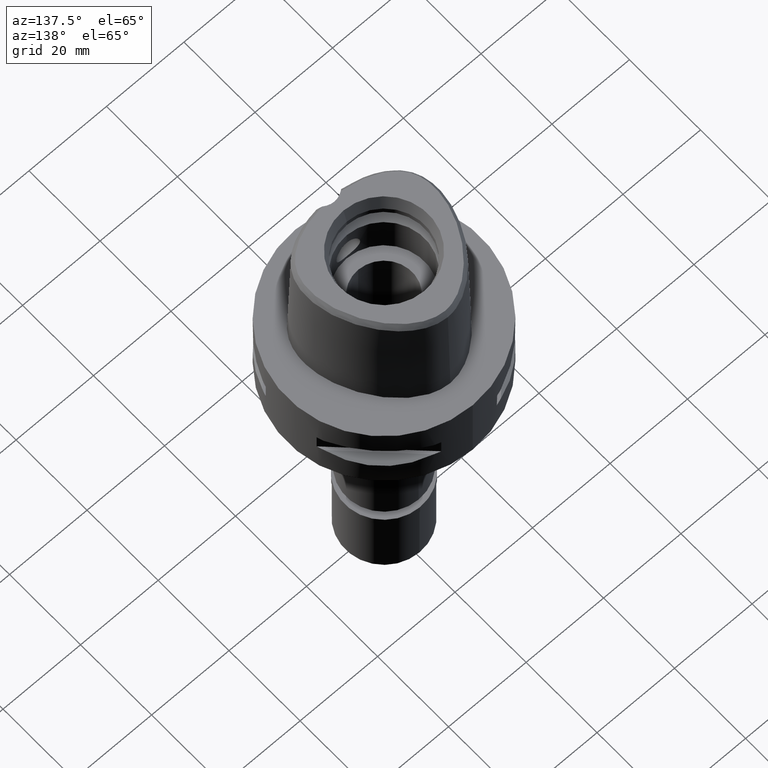
[diagram: clean part render]
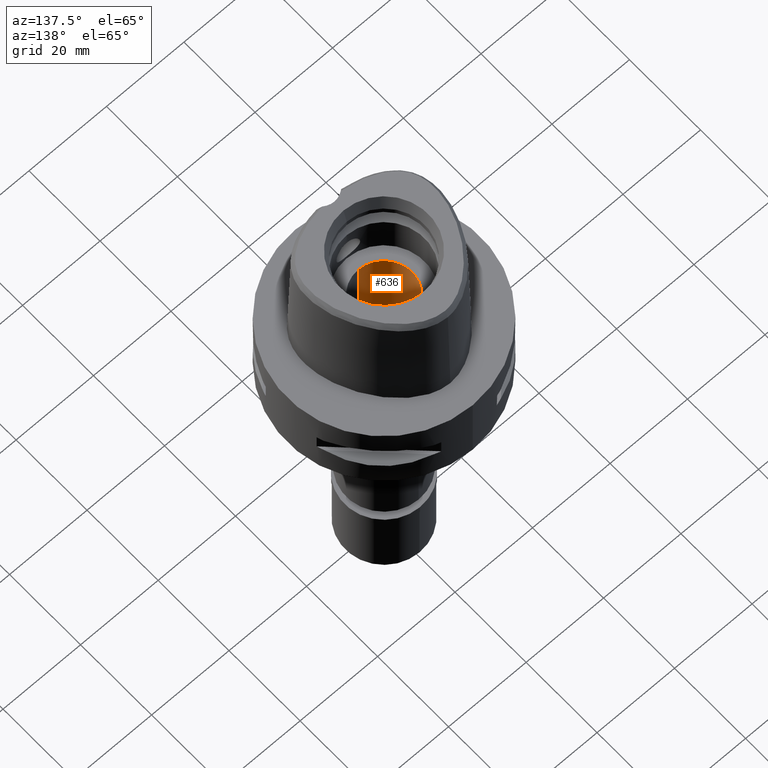
[diagram: same view with one face highlighted and labeled with its STEP entity id]
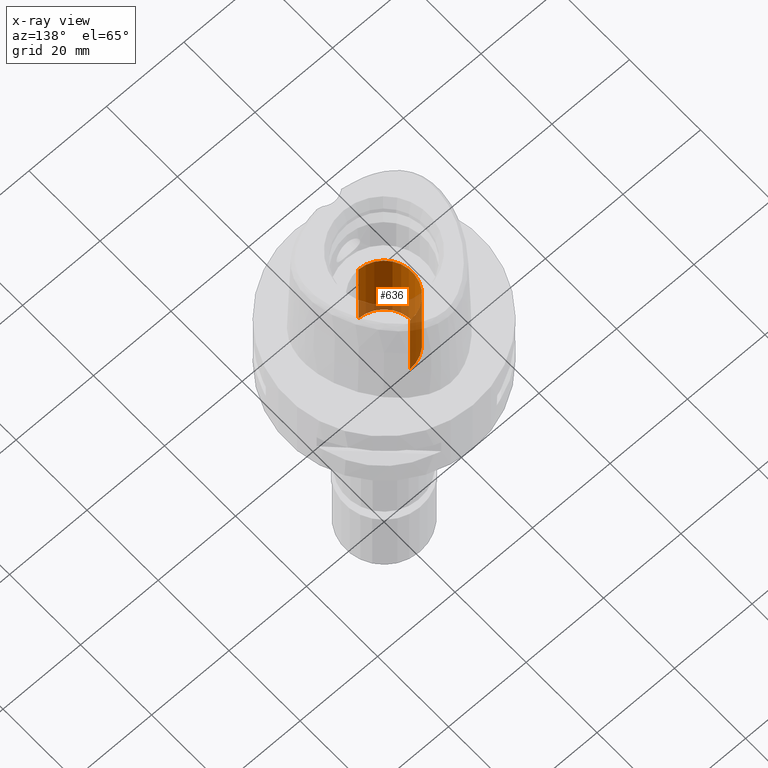
[diagram: x-ray of the same camera — body ghosted, the highlighted face saturated]
A machine part, auxiliary view. The second image highlights one B-rep face of the part: STEP entity #636.
The next image is the same camera in x-ray: the body ghosted, the highlighted face saturated — about 36% of this face is hidden behind the body in this view.
In plain terms, the highlighted cylindrical surface (partial cylindrical patch) has radius 7.25 mm, axis along (0, 0, -1).
Its self-contained STEP definition (entity closure, byte-faithful):
#145 = DIRECTION ( 'NONE',  ( 0.0000000000000000000, 0.0000000000000000000, 1.000000000000000000 ) ) ;
#167 = EDGE_CURVE ( 'NONE', #4859, #4591, #2912, .T. ) ;
#266 = DIRECTION ( 'NONE',  ( 0.0000000000000000000, 0.0000000000000000000, -1.000000000000000000 ) ) ;
#636 = ADVANCED_FACE ( 'NONE', ( #3031 ), #661, .F. ) ;
#661 = CYLINDRICAL_SURFACE ( 'NONE', #1797, 7.250000000000000000 ) ;
#712 = DIRECTION ( 'NONE',  ( 0.0000000000000000000, 0.0000000000000000000, 1.000000000000000000 ) ) ;
#977 = VERTEX_POINT ( 'NONE', #980 ) ;
#980 = CARTESIAN_POINT ( 'NONE',  ( 0.0000000000000000000, 7.250000000000000000, -12.00000000000000000 ) ) ;
#1086 = EDGE_CURVE ( 'NONE', #4591, #977, #3383, .T. ) ;
#1327 = CARTESIAN_POINT ( 'NONE',  ( 0.0000000000000000000, 1.610410540878999754E-14, -12.00000000000000000 ) ) ;
#1492 = CARTESIAN_POINT ( 'NONE',  ( 0.0000000000000000000, 7.250000000000000000, -12.00000000000000000 ) ) ;
#1676 = DIRECTION ( 'NONE',  ( 0.0000000000000000000, 1.000000000000000000, 0.0000000000000000000 ) ) ;
#1687 = DIRECTION ( 'NONE',  ( 0.0000000000000000000, 0.0000000000000000000, -1.000000000000000000 ) ) ;
#1713 = ORIENTED_EDGE ( 'NONE', *, *, #167, .T. ) ;
#1797 = AXIS2_PLACEMENT_3D ( 'NONE', #2266, #3381, #4143 ) ;
#1801 = VECTOR ( 'NONE', #712, 1000.000000000000000 ) ;
#1830 = EDGE_CURVE ( 'NONE', #3836, #4859, #4512, .T. ) ;
#2017 = CARTESIAN_POINT ( 'NONE',  ( 0.0000000000000000000, 1.610410540878999754E-14, 10.00000000000000000 ) ) ;
#2233 = ORIENTED_EDGE ( 'NONE', *, *, #3225, .T. ) ;
#2266 = CARTESIAN_POINT ( 'NONE',  ( 0.0000000000000000000, 1.610410540878999754E-14, 31.50000000000000000 ) ) ;
#2294 = LINE ( 'NONE', #1492, #1801 ) ;
#2556 = ORIENTED_EDGE ( 'NONE', *, *, #1830, .T. ) ;
#2849 = DIRECTION ( 'NONE',  ( 0.0000000000000000000, -1.000000000000000000, 0.0000000000000000000 ) ) ;
#2912 = LINE ( 'NONE', #4860, #3290 ) ;
#3031 = FACE_OUTER_BOUND ( 'NONE', #4605, .T. ) ;
#3099 = CARTESIAN_POINT ( 'NONE',  ( 0.0000000000000000000, -7.250000000000000000, 10.00000000000000000 ) ) ;
#3225 = EDGE_CURVE ( 'NONE', #977, #3836, #2294, .T. ) ;
#3290 = VECTOR ( 'NONE', #266, 1000.000000000000000 ) ;
#3381 = DIRECTION ( 'NONE',  ( 0.0000000000000000000, 0.0000000000000000000, -1.000000000000000000 ) ) ;
#3383 = CIRCLE ( 'NONE', #4656, 7.250000000000000000 ) ;
#3836 = VERTEX_POINT ( 'NONE', #4493 ) ;
#4119 = AXIS2_PLACEMENT_3D ( 'NONE', #2017, #145, #1676 ) ;
#4143 = DIRECTION ( 'NONE',  ( 0.0000000000000000000, -1.000000000000000000, 0.0000000000000000000 ) ) ;
#4439 = CARTESIAN_POINT ( 'NONE',  ( 0.0000000000000000000, -7.250000000000000000, -12.00000000000000000 ) ) ;
#4493 = CARTESIAN_POINT ( 'NONE',  ( 0.0000000000000000000, 7.250000000000000000, 10.00000000000000000 ) ) ;
#4512 = CIRCLE ( 'NONE', #4119, 7.250000000000000000 ) ;
#4591 = VERTEX_POINT ( 'NONE', #4439 ) ;
#4605 = EDGE_LOOP ( 'NONE', ( #2556, #1713, #4632, #2233 ) ) ;
#4632 = ORIENTED_EDGE ( 'NONE', *, *, #1086, .T. ) ;
#4656 = AXIS2_PLACEMENT_3D ( 'NONE', #1327, #1687, #2849 ) ;
#4859 = VERTEX_POINT ( 'NONE', #3099 ) ;
#4860 = CARTESIAN_POINT ( 'NONE',  ( 0.0000000000000000000, -7.250000000000000000, 10.00000000000000000 ) ) ;